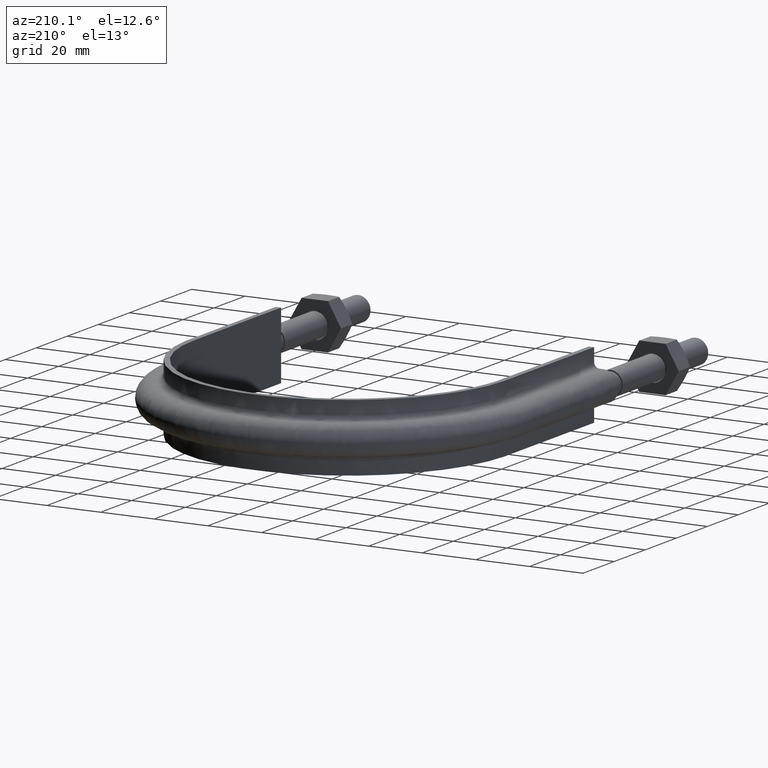
[diagram: clean part render]
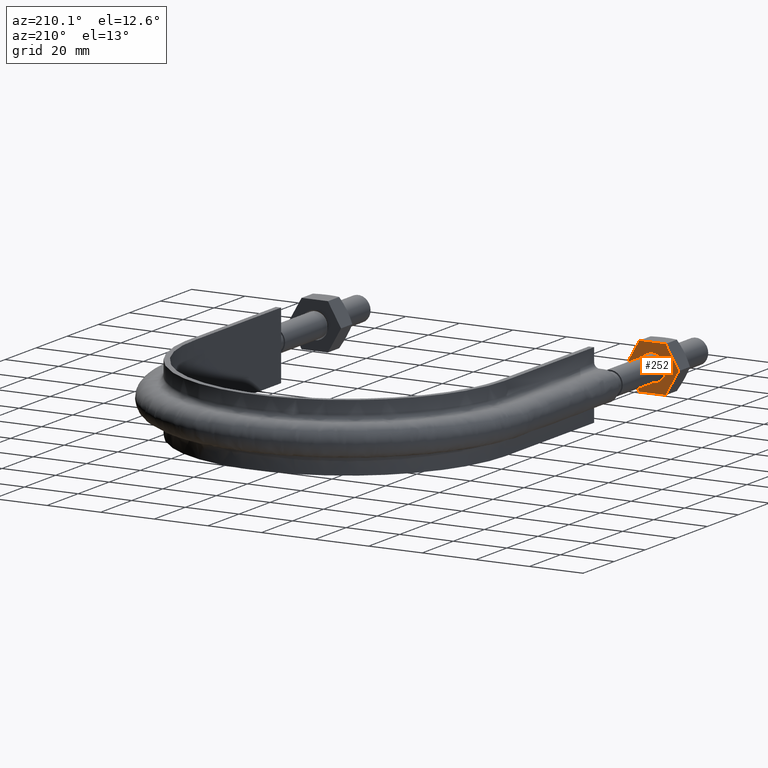
[diagram: same view with one face highlighted and labeled with its STEP entity id]
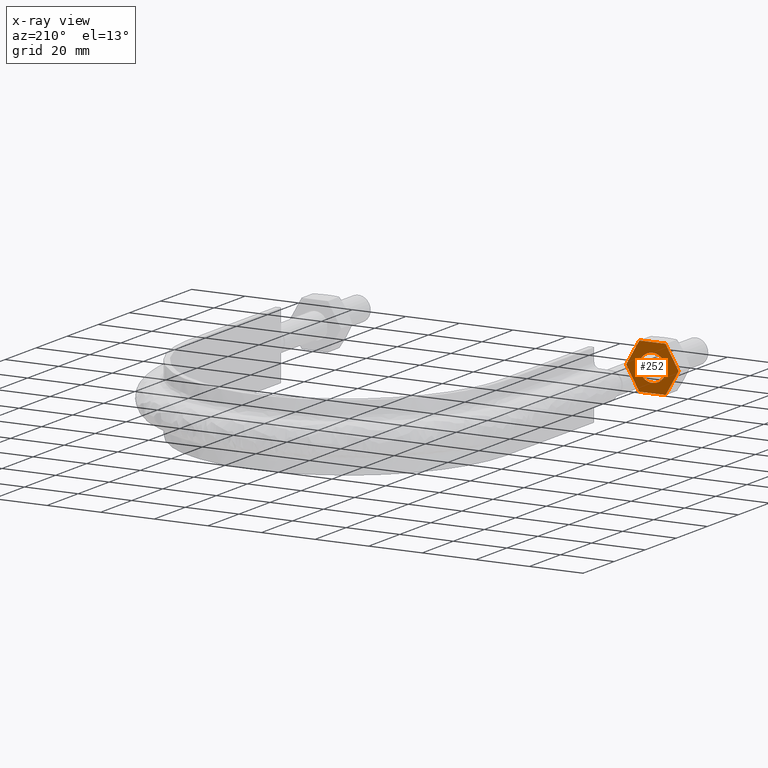
[diagram: x-ray of the same camera — body ghosted, the highlighted face saturated]
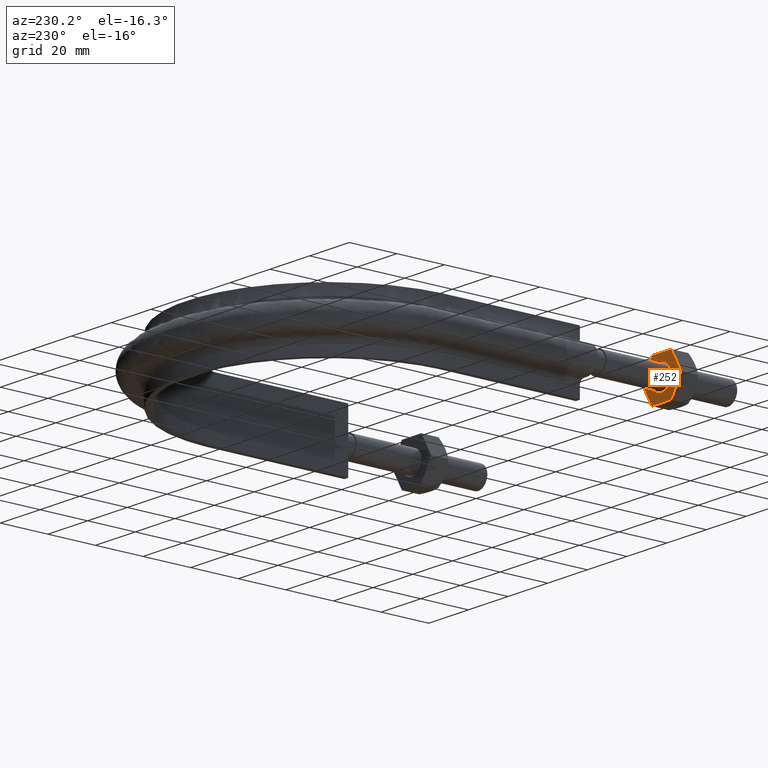
[diagram: same view with one face highlighted and labeled with its STEP entity id]
A machine part, auxiliary view. The second image highlights one B-rep face of the part: STEP entity #252.
The next image is the same camera in x-ray: the body ghosted, the highlighted face saturated — about 0% of this face is hidden behind the body in this view.
A second angle (auxiliary view) of the same face is appended — the face is thin or edge-on in the first view.
In plain terms, the highlighted planar face has unit normal (-0, -1, -0).
Its self-contained STEP definition (entity closure, byte-faithful):
#252 = ADVANCED_FACE( '', ( #369, #370 ), #371, .F. );
#369 = FACE_BOUND( '', #1191, .T. );
#370 = FACE_OUTER_BOUND( '', #1192, .T. );
#371 = PLANE( '', #1193 );
#1191 = EDGE_LOOP( '', ( #1503 ) );
#1192 = EDGE_LOOP( '', ( #1504, #1505, #1506, #1507, #1508, #1509, #1510, #1511, #1512, #1513, #1514, #1515 ) );
#1193 = AXIS2_PLACEMENT_3D( '', #1516, #1517, #1518 );
#1503 = ORIENTED_EDGE( '', *, *, #1879, .F. );
#1504 = ORIENTED_EDGE( '', *, *, #1880, .T. );
#1505 = ORIENTED_EDGE( '', *, *, #1881, .T. );
#1506 = ORIENTED_EDGE( '', *, *, #1882, .T. );
#1507 = ORIENTED_EDGE( '', *, *, #1875, .T. );
#1508 = ORIENTED_EDGE( '', *, *, #1883, .T. );
#1509 = ORIENTED_EDGE( '', *, *, #1884, .T. );
#1510 = ORIENTED_EDGE( '', *, *, #1885, .T. );
#1511 = ORIENTED_EDGE( '', *, *, #1886, .T. );
#1512 = ORIENTED_EDGE( '', *, *, #1887, .T. );
#1513 = ORIENTED_EDGE( '', *, *, #1888, .T. );
#1514 = ORIENTED_EDGE( '', *, *, #1889, .T. );
#1515 = ORIENTED_EDGE( '', *, *, #1890, .T. );
#1516 = CARTESIAN_POINT( '', ( -72.8000000000000, 28.0000000000000, 2.44921270764476E-016 ) );
#1517 = DIRECTION( '', ( -2.44921270764475E-016, -1.00000000000000, -6.12303176911189E-017 ) );
#1518 = DIRECTION( '', ( -1.49966072182214E-032, -6.12303176911189E-017, 1.00000000000000 ) );
#1875 = EDGE_CURVE( '', #2064, #2062, #2065, .T. );
#1879 = EDGE_CURVE( '', #2070, #2070, #2071, .T. );
#1880 = EDGE_CURVE( '', #2072, #2073, #2074, .T. );
#1881 = EDGE_CURVE( '', #2073, #2075, #2076, .T. );
#1882 = EDGE_CURVE( '', #2075, #2064, #2077, .T. );
#1883 = EDGE_CURVE( '', #2062, #2078, #2079, .T. );
#1884 = EDGE_CURVE( '', #2078, #2080, #2081, .T. );
#1885 = EDGE_CURVE( '', #2080, #2082, #2083, .T. );
#1886 = EDGE_CURVE( '', #2082, #2084, #2085, .T. );
#1887 = EDGE_CURVE( '', #2084, #2086, #2087, .T. );
#1888 = EDGE_CURVE( '', #2086, #2088, #2089, .T. );
#1889 = EDGE_CURVE( '', #2088, #2090, #2091, .T. );
#1890 = EDGE_CURVE( '', #2090, #2072, #2092, .T. );
#2062 = VERTEX_POINT( '', #2565 );
#2064 = VERTEX_POINT( '', #2568 );
#2065 = LINE( '', #2569, #2570 );
#2070 = VERTEX_POINT( '', #2583 );
#2071 = CIRCLE( '', #2584, 5.00000000000000 );
#2072 = VERTEX_POINT( '', #2585 );
#2073 = VERTEX_POINT( '', #2586 );
#2074 = CIRCLE( '', #2587, 9.80000000000000 );
#2075 = VERTEX_POINT( '', #2588 );
#2076 = LINE( '', #2589, #2590 );
#2077 = CIRCLE( '', #2591, 9.80000000000000 );
#2078 = VERTEX_POINT( '', #2592 );
#2079 = CIRCLE( '', #2593, 9.80000000000000 );
#2080 = VERTEX_POINT( '', #2594 );
#2081 = LINE( '', #2595, #2596 );
#2082 = VERTEX_POINT( '', #2597 );
#2083 = CIRCLE( '', #2598, 9.80000000000000 );
#2084 = VERTEX_POINT( '', #2599 );
#2085 = LINE( '', #2600, #2601 );
#2086 = VERTEX_POINT( '', #2602 );
#2087 = CIRCLE( '', #2603, 9.80000000000000 );
#2088 = VERTEX_POINT( '', #2604 );
#2089 = LINE( '', #2605, #2606 );
#2090 = VERTEX_POINT( '', #2607 );
#2091 = CIRCLE( '', #2608, 9.80000000000000 );
#2092 = LINE( '', #2609, #2610 );
#2565 = CARTESIAN_POINT( '', ( -53.2000343881808, 28.0000000000000, 0.0259616479013818 ) );
#2568 = CARTESIAN_POINT( '', ( -58.0775337474837, 28.0000000000000, 8.47403835209862 ) );
#2569 = CARTESIAN_POINT( '', ( -58.0887840678323, 28.0000000000000, 8.49352447854375 ) );
#2570 = VECTOR( '', #2962, 1000.00000000000 );
#2583 = CARTESIAN_POINT( '', ( -63.0000000000000, 28.0000000000000, -5.00000000000000 ) );
#2584 = AXIS2_PLACEMENT_3D( '', #2967, #2968, #2969 );
#2585 = CARTESIAN_POINT( '', ( -67.9224662525163, 28.0000000000000, 8.47403835209862 ) );
#2586 = CARTESIAN_POINT( '', ( -67.8774993593029, 28.0000000000000, 8.50000000000000 ) );
#2587 = AXIS2_PLACEMENT_3D( '', #2970, #2971, #2972 );
#2588 = CARTESIAN_POINT( '', ( -58.1225006406971, 28.0000000000000, 8.50000000000000 ) );
#2589 = CARTESIAN_POINT( '', ( -72.8000000000000, 28.0000000000000, 8.50000000000000 ) );
#2590 = VECTOR( '', #2973, 1000.00000000000 );
#2591 = AXIS2_PLACEMENT_3D( '', #2974, #2975, #2976 );
#2592 = CARTESIAN_POINT( '', ( -53.2000343881808, 28.0000000000000, -0.0259616479013810 ) );
#2593 = AXIS2_PLACEMENT_3D( '', #2977, #2978, #2979 );
#2594 = CARTESIAN_POINT( '', ( -58.0775337474837, 28.0000000000000, -8.47403835209862 ) );
#2595 = CARTESIAN_POINT( '', ( -58.0887840678323, 28.0000000000000, -8.49352447854375 ) );
#2596 = VECTOR( '', #2980, 1000.00000000000 );
#2597 = CARTESIAN_POINT( '', ( -58.1225006406971, 28.0000000000000, -8.50000000000000 ) );
#2598 = AXIS2_PLACEMENT_3D( '', #2981, #2982, #2983 );
#2599 = CARTESIAN_POINT( '', ( -67.8774993593029, 28.0000000000000, -8.50000000000000 ) );
#2600 = CARTESIAN_POINT( '', ( -72.8000000000000, 28.0000000000000, -8.50000000000000 ) );
#2601 = VECTOR( '', #2984, 1000.00000000000 );
#2602 = CARTESIAN_POINT( '', ( -67.9224662525163, 28.0000000000000, -8.47403835209862 ) );
#2603 = AXIS2_PLACEMENT_3D( '', #2985, #2986, #2987 );
#2604 = CARTESIAN_POINT( '', ( -72.7999656118192, 28.0000000000000, -0.0259616479013778 ) );
#2605 = CARTESIAN_POINT( '', ( -72.8112159321677, 28.0000000000000, -0.00647552145624917 ) );
#2606 = VECTOR( '', #2988, 1000.00000000000 );
#2607 = CARTESIAN_POINT( '', ( -72.7999656118192, 28.0000000000000, 0.0259616479013789 ) );
#2608 = AXIS2_PLACEMENT_3D( '', #2989, #2990, #2991 );
#2609 = CARTESIAN_POINT( '', ( -72.8112159321677, 28.0000000000000, 0.00647552145624994 ) );
#2610 = VECTOR( '', #2992, 1000.00000000000 );
#2962 = DIRECTION( '', ( 0.500000000000000, -6.94336247799370E-017, -0.866025403784439 ) );
#2967 = CARTESIAN_POINT( '', ( -63.0000000000000, 28.0000000000000, 2.44921270764476E-016 ) );
#2968 = DIRECTION( '', ( 2.44921270764475E-016, 1.00000000000000, 6.12303176911189E-017 ) );
#2969 = DIRECTION( '', ( 1.49966072182214E-032, 6.12303176911189E-017, -1.00000000000000 ) );
#2970 = CARTESIAN_POINT( '', ( -63.0000000000000, 28.0000000000000, 2.44921270764476E-016 ) );
#2971 = DIRECTION( '', ( 2.44921270764475E-016, 1.00000000000000, 6.12303176911189E-017 ) );
#2972 = DIRECTION( '', ( 1.49966072182214E-032, 6.12303176911189E-017, -1.00000000000000 ) );
#2973 = DIRECTION( '', ( 1.00000000000000, -2.44921270764475E-016, 2.73691106313441E-048 ) );
#2974 = CARTESIAN_POINT( '', ( -63.0000000000000, 28.0000000000000, 2.44921270764476E-016 ) );
#2975 = DIRECTION( '', ( 2.44921270764475E-016, 1.00000000000000, 6.12303176911189E-017 ) );
#2976 = DIRECTION( '', ( 1.49966072182214E-032, 6.12303176911189E-017, -1.00000000000000 ) );
#2977 = CARTESIAN_POINT( '', ( -63.0000000000000, 28.0000000000000, 2.44921270764476E-016 ) );
#2978 = DIRECTION( '', ( 2.44921270764475E-016, 1.00000000000000, 6.12303176911189E-017 ) );
#2979 = DIRECTION( '', ( 1.49966072182214E-032, 6.12303176911189E-017, -1.00000000000000 ) );
#2980 = DIRECTION( '', ( -0.500000000000000, 1.75487645984538E-016, -0.866025403784439 ) );
#2981 = CARTESIAN_POINT( '', ( -63.0000000000000, 28.0000000000000, 2.44921270764476E-016 ) );
#2982 = DIRECTION( '', ( 2.44921270764475E-016, 1.00000000000000, 6.12303176911189E-017 ) );
#2983 = DIRECTION( '', ( 1.49966072182214E-032, 6.12303176911189E-017, -1.00000000000000 ) );
#2984 = DIRECTION( '', ( -1.00000000000000, 2.44921270764475E-016, -2.73691106313441E-048 ) );
#2985 = CARTESIAN_POINT( '', ( -63.0000000000000, 28.0000000000000, 2.44921270764476E-016 ) );
#2986 = DIRECTION( '', ( 2.44921270764475E-016, 1.00000000000000, 6.12303176911189E-017 ) );
#2987 = DIRECTION( '', ( 1.49966072182214E-032, 6.12303176911189E-017, -1.00000000000000 ) );
#2988 = DIRECTION( '', ( -0.500000000000000, 6.94336247799370E-017, 0.866025403784439 ) );
#2989 = CARTESIAN_POINT( '', ( -63.0000000000000, 28.0000000000000, 2.44921270764476E-016 ) );
#2990 = DIRECTION( '', ( 2.44921270764475E-016, 1.00000000000000, 6.12303176911189E-017 ) );
#2991 = DIRECTION( '', ( 1.49966072182214E-032, 6.12303176911189E-017, -1.00000000000000 ) );
#2992 = DIRECTION( '', ( 0.500000000000000, -1.75487645984538E-016, 0.866025403784439 ) );